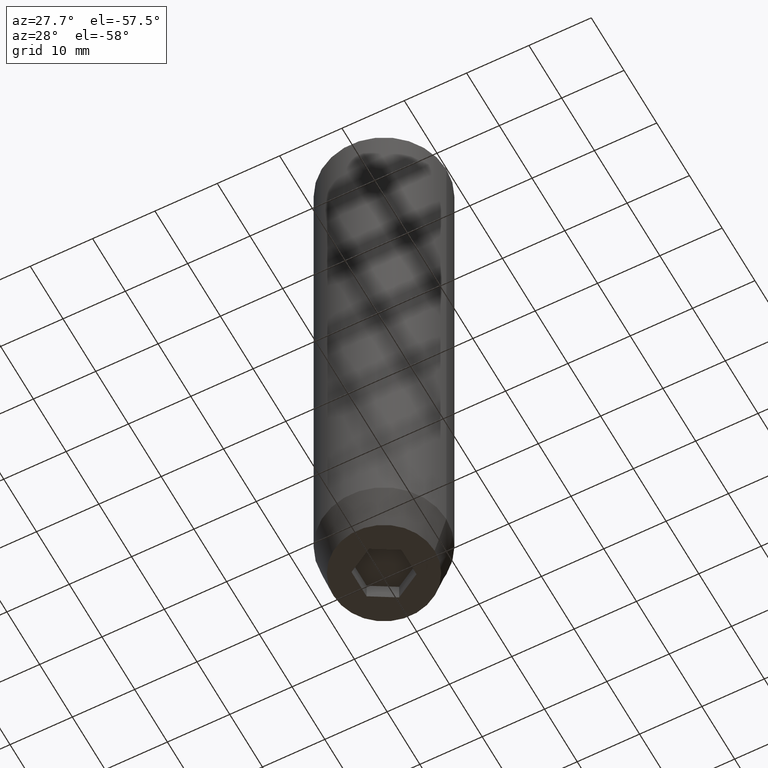
[diagram: clean part render]
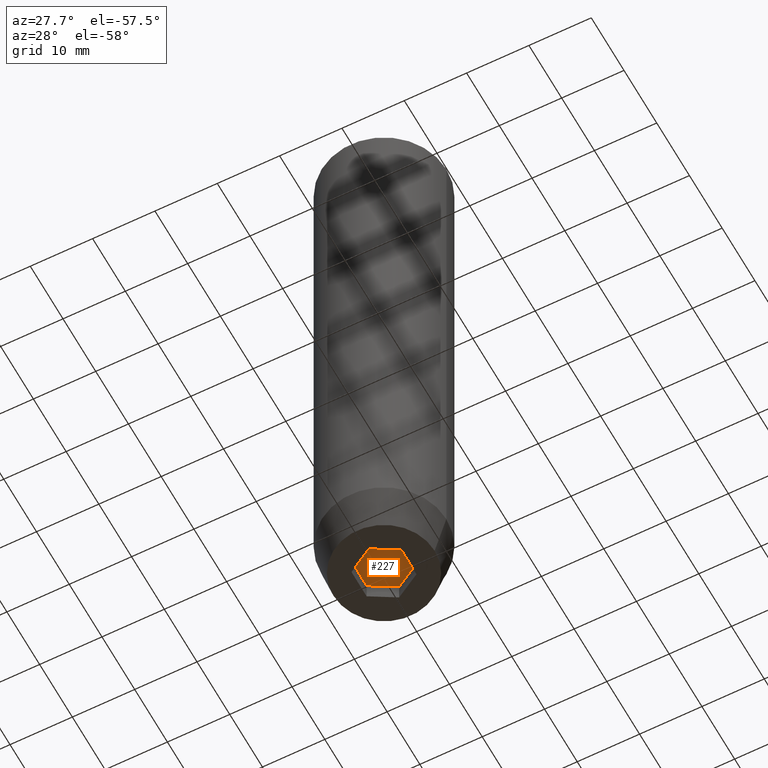
[diagram: same view with one face highlighted and labeled with its STEP entity id]
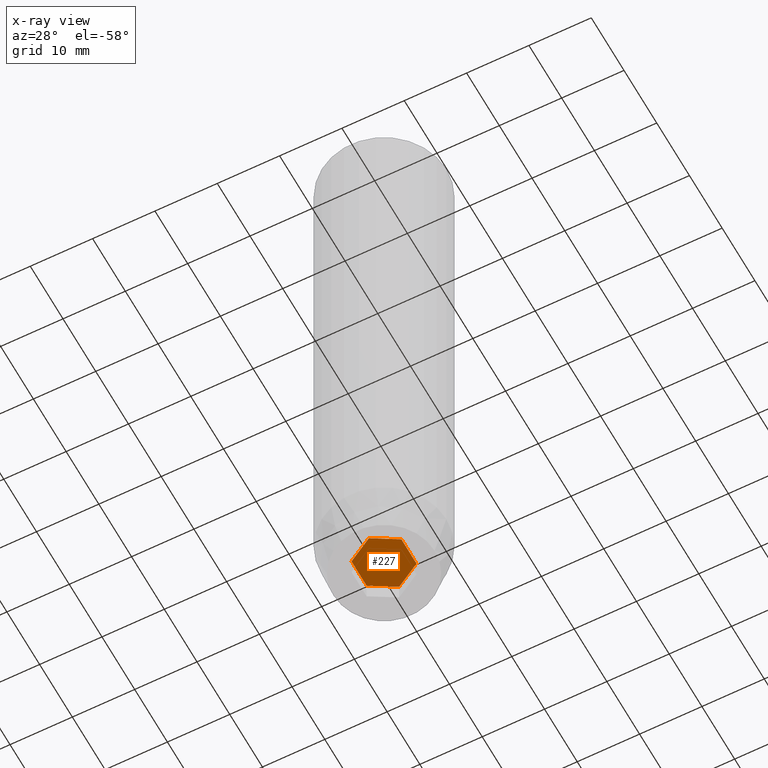
[diagram: x-ray of the same camera — body ghosted, the highlighted face saturated]
A machine part, auxiliary view. The second image highlights one B-rep face of the part: STEP entity #227.
The next image is the same camera in x-ray: the body ghosted, the highlighted face saturated — about 0% of this face is hidden behind the body in this view.
In plain terms, the highlighted planar face has unit normal (0, 0, -1).
Its self-contained STEP definition (entity closure, byte-faithful):
#13 = VECTOR ( 'NONE', #76, 1000.000000000000000 ) ;
#26 = LINE ( 'NONE', #577, #355 ) ;
#27 = ORIENTED_EDGE ( 'NONE', *, *, #565, .T. ) ;
#46 = CARTESIAN_POINT ( 'NONE',  ( -4.000000000000000000, 0.000000000000000000, -97.20000000000000284 ) ) ;
#58 = ORIENTED_EDGE ( 'NONE', *, *, #94, .T. ) ;
#76 = DIRECTION ( 'NONE',  ( 0.000000000000000000, -1.000000000000000000, 0.000000000000000000 ) ) ;
#82 = ORIENTED_EDGE ( 'NONE', *, *, #509, .T. ) ;
#87 = VERTEX_POINT ( 'NONE', #325 ) ;
#94 = EDGE_CURVE ( 'NONE', #515, #160, #555, .T. ) ;
#108 = DIRECTION ( 'NONE',  ( -0.8660254037844384856, 0.5000000000000002220, 0.000000000000000000 ) ) ;
#160 = VERTEX_POINT ( 'NONE', #330 ) ;
#163 = VECTOR ( 'NONE', #197, 1000.000000000000000 ) ;
#183 = VECTOR ( 'NONE', #451, 1000.000000000000000 ) ;
#187 = ORIENTED_EDGE ( 'NONE', *, *, #422, .T. ) ;
#197 = DIRECTION ( 'NONE',  ( 0.8660254037844385966, -0.5000000000000001110, 0.000000000000000000 ) ) ;
#209 = DIRECTION ( 'NONE',  ( 0.000000000000000000, 0.000000000000000000, -1.000000000000000000 ) ) ;
#227 = ADVANCED_FACE ( 'NONE', ( #256 ), #528, .T. ) ;
#255 = ORIENTED_EDGE ( 'NONE', *, *, #583, .T. ) ;
#256 = FACE_OUTER_BOUND ( 'NONE', #375, .T. ) ;
#292 = VERTEX_POINT ( 'NONE', #443 ) ;
#300 = LINE ( 'NONE', #484, #364 ) ;
#306 = VERTEX_POINT ( 'NONE', #307 ) ;
#307 = CARTESIAN_POINT ( 'NONE',  ( -4.000000000000000000, 2.309401076758503368, -97.20000000000000284 ) ) ;
#325 = CARTESIAN_POINT ( 'NONE',  ( 0.000000000000000000, 4.618802153517006737, -97.20000000000000284 ) ) ;
#326 = AXIS2_PLACEMENT_3D ( 'NONE', #524, #209, #346 ) ;
#330 = CARTESIAN_POINT ( 'NONE',  ( -4.000000000000000000, -2.309401076758503368, -97.20000000000000284 ) ) ;
#335 = DIRECTION ( 'NONE',  ( 0.8660254037844387076, 0.5000000000000001110, 0.000000000000000000 ) ) ;
#344 = CARTESIAN_POINT ( 'NONE',  ( 4.000000000000000000, 0.000000000000000000, -97.20000000000000284 ) ) ;
#346 = DIRECTION ( 'NONE',  ( -1.000000000000000000, 0.000000000000000000, -0.000000000000000000 ) ) ;
#355 = VECTOR ( 'NONE', #335, 999.9999999999998863 ) ;
#364 = VECTOR ( 'NONE', #426, 1000.000000000000114 ) ;
#371 = LINE ( 'NONE', #548, #163 ) ;
#375 = EDGE_LOOP ( 'NONE', ( #187, #540, #82, #27, #58, #255 ) ) ;
#389 = EDGE_CURVE ( 'NONE', #87, #419, #371, .T. ) ;
#414 = CARTESIAN_POINT ( 'NONE',  ( -2.000000000000000888, -3.464101615137754386, -97.20000000000000284 ) ) ;
#419 = VERTEX_POINT ( 'NONE', #456 ) ;
#422 = EDGE_CURVE ( 'NONE', #306, #87, #26, .T. ) ;
#426 = DIRECTION ( 'NONE',  ( -0.8660254037844384856, -0.5000000000000002220, 0.000000000000000000 ) ) ;
#443 = CARTESIAN_POINT ( 'NONE',  ( 4.000000000000000000, -2.309401076758502480, -97.20000000000000284 ) ) ;
#451 = DIRECTION ( 'NONE',  ( 0.000000000000000000, 1.000000000000000000, 0.000000000000000000 ) ) ;
#456 = CARTESIAN_POINT ( 'NONE',  ( 4.000000000000000000, 2.309401076758503368, -97.20000000000000284 ) ) ;
#458 = VECTOR ( 'NONE', #108, 1000.000000000000114 ) ;
#475 = LINE ( 'NONE', #344, #13 ) ;
#484 = CARTESIAN_POINT ( 'NONE',  ( 2.000000000000000888, -3.464101615137754386, -97.20000000000000284 ) ) ;
#509 = EDGE_CURVE ( 'NONE', #419, #292, #475, .T. ) ;
#515 = VERTEX_POINT ( 'NONE', #580 ) ;
#524 = CARTESIAN_POINT ( 'NONE',  ( 0.000000000000000000, 0.000000000000000000, -97.20000000000000284 ) ) ;
#528 = PLANE ( 'NONE',  #326 ) ;
#539 = LINE ( 'NONE', #46, #183 ) ;
#540 = ORIENTED_EDGE ( 'NONE', *, *, #389, .T. ) ;
#548 = CARTESIAN_POINT ( 'NONE',  ( 2.000000000000000444, 3.464101615137754386, -97.20000000000000284 ) ) ;
#555 = LINE ( 'NONE', #414, #458 ) ;
#565 = EDGE_CURVE ( 'NONE', #292, #515, #300, .T. ) ;
#577 = CARTESIAN_POINT ( 'NONE',  ( -2.000000000000000000, 3.464101615137754830, -97.20000000000000284 ) ) ;
#580 = CARTESIAN_POINT ( 'NONE',  ( 4.336808689942017736E-16, -4.618802153517006737, -97.20000000000000284 ) ) ;
#583 = EDGE_CURVE ( 'NONE', #160, #306, #539, .T. ) ;